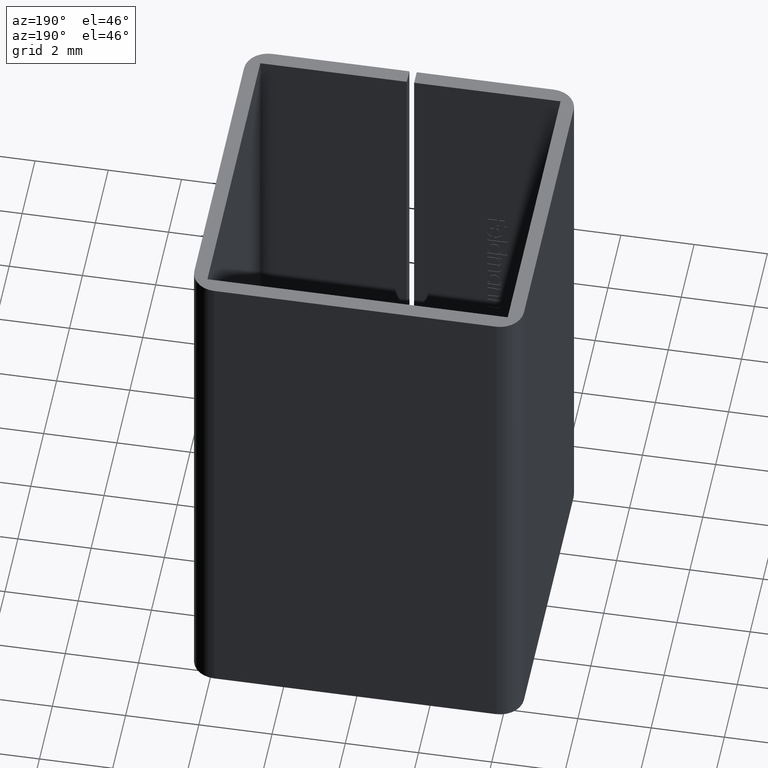
[diagram: clean part render]
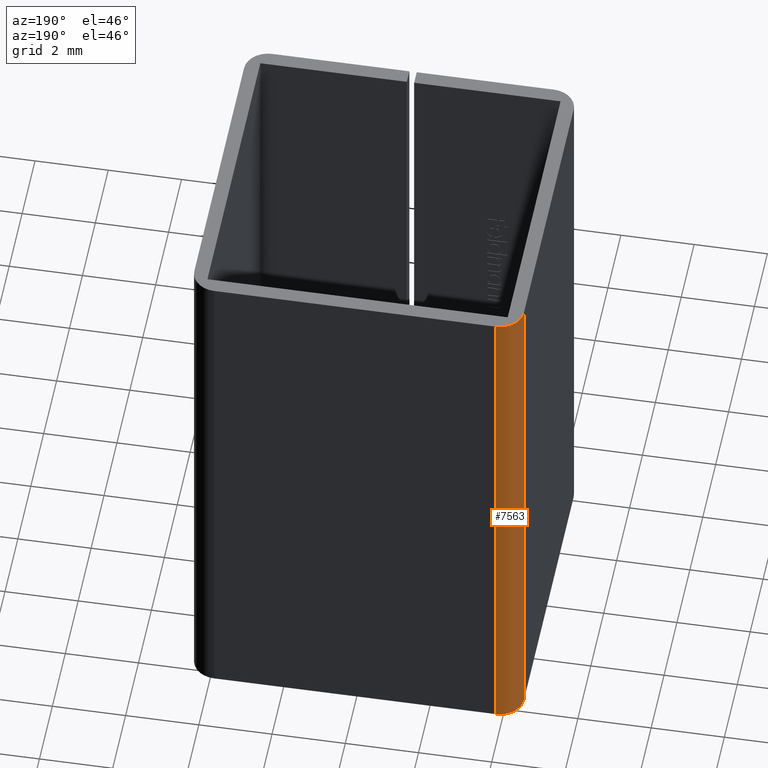
[diagram: same view with one face highlighted and labeled with its STEP entity id]
A machine part, auxiliary view. The second image highlights one B-rep face of the part: STEP entity #7563.
In plain terms, the highlighted cylindrical surface (edge-blend (fillet) strip) has radius 0.65 mm, axis along (0, -0, 1).
Its self-contained STEP definition (entity closure, byte-faithful):
#36 = VERTEX_POINT ( 'NONE', #4262 ) ;
#263 = EDGE_CURVE ( 'NONE', #1497, #9911, #7687, .T. ) ;
#699 = ORIENTED_EDGE ( 'NONE', *, *, #263, .F. ) ;
#709 = FACE_OUTER_BOUND ( 'NONE', #5723, .T. ) ;
#1077 = AXIS2_PLACEMENT_3D ( 'NONE', #2369, #4023, #4800 ) ;
#1202 = LINE ( 'NONE', #9406, #2568 ) ;
#1497 = VERTEX_POINT ( 'NONE', #7714 ) ;
#1580 = EDGE_CURVE ( 'NONE', #9911, #6482, #1202, .T. ) ;
#1827 = CYLINDRICAL_SURFACE ( 'NONE', #3007, 0.6500000000000000222 ) ;
#2369 = CARTESIAN_POINT ( 'NONE',  ( -3.850000000000000533, 3.850000000000000533, -7.500000000000000000 ) ) ;
#2477 = DIRECTION ( 'NONE',  ( 1.000000000000000000, 0.000000000000000000, 0.000000000000000000 ) ) ;
#2568 = VECTOR ( 'NONE', #5406, 1000.000000000000000 ) ;
#3007 = AXIS2_PLACEMENT_3D ( 'NONE', #9192, #4377, #9982 ) ;
#3979 = ORIENTED_EDGE ( 'NONE', *, *, #7777, .F. ) ;
#4023 = DIRECTION ( 'NONE',  ( 0.000000000000000000, -0.000000000000000000, -1.000000000000000000 ) ) ;
#4024 = CARTESIAN_POINT ( 'NONE',  ( -3.850000000000000533, 4.500000000000000888, 7.500000000000000000 ) ) ;
#4262 = CARTESIAN_POINT ( 'NONE',  ( -3.850000000000000533, 4.500000000000000888, -7.500000000000000000 ) ) ;
#4299 = ORIENTED_EDGE ( 'NONE', *, *, #7273, .F. ) ;
#4377 = DIRECTION ( 'NONE',  ( 0.000000000000000000, -0.000000000000000000, 1.000000000000000000 ) ) ;
#4800 = DIRECTION ( 'NONE',  ( 1.000000000000000000, 0.000000000000000000, 0.000000000000000000 ) ) ;
#5406 = DIRECTION ( 'NONE',  ( 0.000000000000000000, 0.000000000000000000, -1.000000000000000000 ) ) ;
#5723 = EDGE_LOOP ( 'NONE', ( #699, #4299, #3979, #7306 ) ) ;
#5927 = LINE ( 'NONE', #4024, #9823 ) ;
#6482 = VERTEX_POINT ( 'NONE', #8799 ) ;
#7273 = EDGE_CURVE ( 'NONE', #36, #1497, #5927, .T. ) ;
#7306 = ORIENTED_EDGE ( 'NONE', *, *, #1580, .F. ) ;
#7563 = ADVANCED_FACE ( 'NONE', ( #709 ), #1827, .T. ) ;
#7687 = CIRCLE ( 'NONE', #7762, 0.6500000000000000222 ) ;
#7714 = CARTESIAN_POINT ( 'NONE',  ( -3.850000000000000533, 4.500000000000000888, 7.500000000000000000 ) ) ;
#7762 = AXIS2_PLACEMENT_3D ( 'NONE', #8252, #8910, #2477 ) ;
#7777 = EDGE_CURVE ( 'NONE', #6482, #36, #9558, .T. ) ;
#7880 = CARTESIAN_POINT ( 'NONE',  ( -4.500000000000000888, 3.850000000000000533, 7.500000000000000000 ) ) ;
#8252 = CARTESIAN_POINT ( 'NONE',  ( -3.850000000000000533, 3.850000000000000533, 7.500000000000000000 ) ) ;
#8799 = CARTESIAN_POINT ( 'NONE',  ( -4.500000000000000888, 3.850000000000000533, -7.500000000000000000 ) ) ;
#8910 = DIRECTION ( 'NONE',  ( -0.000000000000000000, 0.000000000000000000, 1.000000000000000000 ) ) ;
#9192 = CARTESIAN_POINT ( 'NONE',  ( -3.850000000000000533, 3.850000000000000533, 7.500000000000000000 ) ) ;
#9406 = CARTESIAN_POINT ( 'NONE',  ( -4.500000000000000888, 3.850000000000000533, -7.500000000000000000 ) ) ;
#9558 = CIRCLE ( 'NONE', #1077, 0.6500000000000000222 ) ;
#9665 = DIRECTION ( 'NONE',  ( -0.000000000000000000, -0.000000000000000000, 1.000000000000000000 ) ) ;
#9823 = VECTOR ( 'NONE', #9665, 1000.000000000000000 ) ;
#9911 = VERTEX_POINT ( 'NONE', #7880 ) ;
#9982 = DIRECTION ( 'NONE',  ( 1.000000000000000000, 0.000000000000000000, 0.000000000000000000 ) ) ;